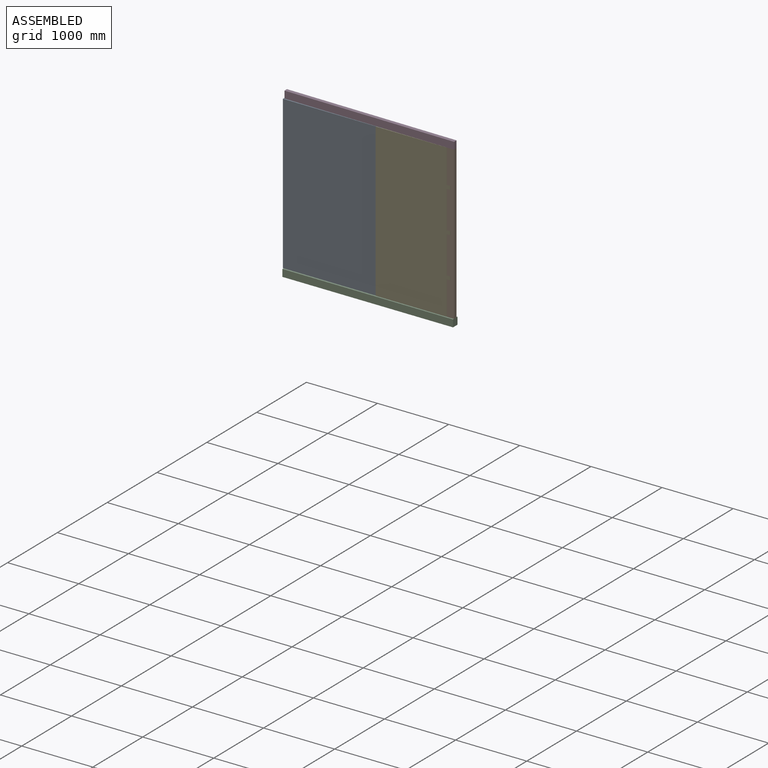
[diagram: assembled view]
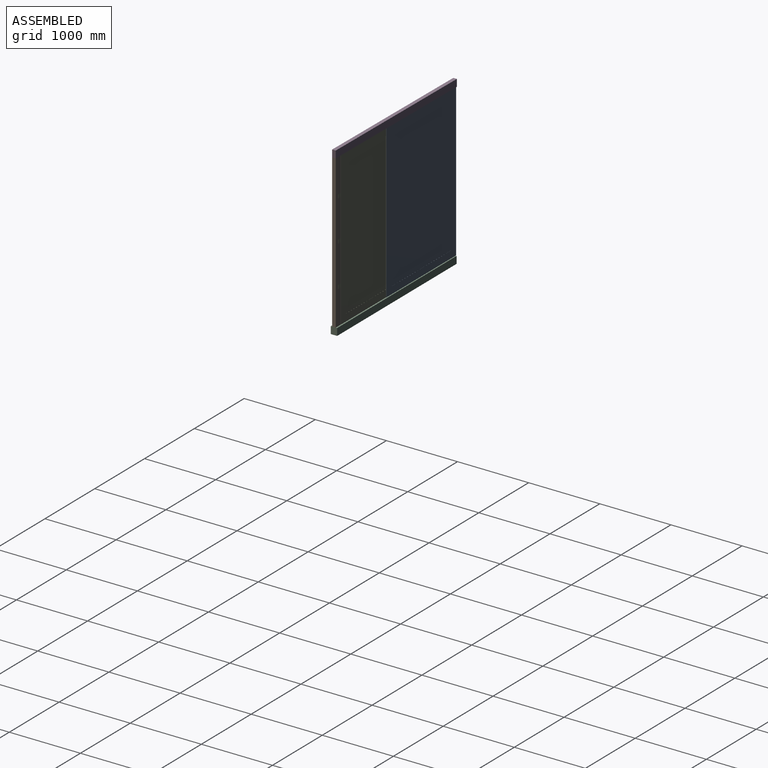
[diagram: assembled view, second angle]
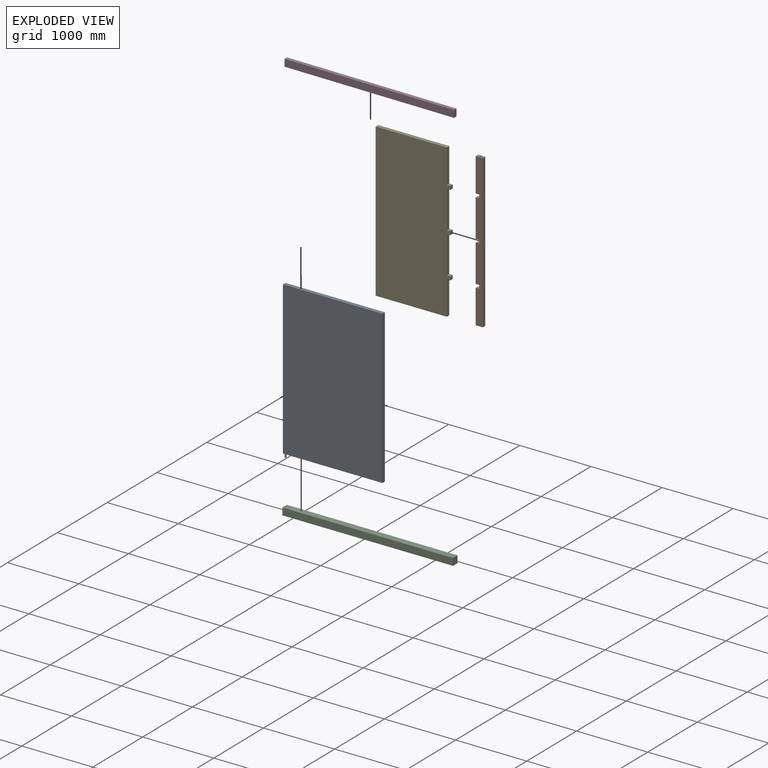
[diagram: exploded view]
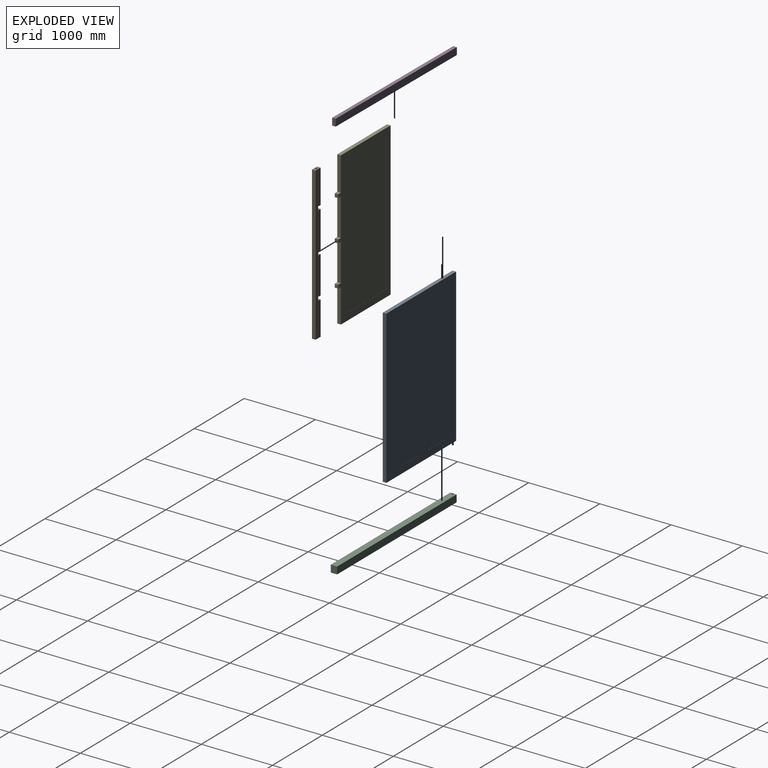
[diagram: exploded view, second angle]
ASSEMBLY  parts=5 mates=4
PART A: 13 faces, bbox 1400x51x2200 mm
  f0: plane 1400x51mm, normal (0,0,-1), area 70947.6mm2, adj f1,f3,f4,f5,f11
  f1: plane 2150x51mm, normal (1,0,0), area 109650mm2, adj f0,f2,f4,f11
  f2: plane 1400x51mm, normal (0,0,1), area 71400mm2, adj f1,f3,f4,f11
  f3: plane 2150x51mm, normal (-1,0,0), area 109650mm2, adj f0,f2,f4,f11
  f4: plane 2150x1400mm, normal (0,-1,0), area 3010000mm2, adj f0,f1,f2,f3
  f5: cylinder r=12mm len=50mm, axis (0,0,1), area 3769.9mm2, adj f0,f6
  f6: plane 24x24mm, normal (0,0,-1), area 452.4mm2, adj f5
  f7: plane 1950x1mm, normal (-1,0,0), area 1950mm2, adj f8,f10,f11,f12
  f8: plane 1200x1mm, normal (0,0,-1), area 1200mm2, adj f7,f9,f11,f12
  f9: plane 1950x1mm, normal (1,0,0), area 1950mm2, adj f8,f10,f11,f12
  f10: plane 1200x1mm, normal (0,0,1), area 1200mm2, adj f7,f9,f11,f12
  f11: plane 2150x1400mm, normal (0,1,0), area 670000mm2, adj f0,f1,f2,f3,f7,f8,f9,f10
  f12: plane 1950x1200mm, normal (0,1,0), area 2340000mm2, adj f7,f8,f9,f10
PART B: 22 faces, bbox 100x50x2150 mm
  f0: plane 50x12.5mm, normal (-1,0,0), area 625mm2, adj f5,f7,f20,f21
  f1: plane 50x12.5mm, normal (-1,0,0), area 625mm2, adj f9,f11,f20,f21
  f2: plane 50x12.5mm, normal (-1,0,0), area 625mm2, adj f13,f15,f20,f21
  f3: plane 100x50mm, normal (0,0,1), area 4509.1mm2, adj f4,f18,f19,f20,f21
  f4: plane 475x50mm, normal (-1,0,0), area 23750mm2, adj f3,f5,f19,f20
  f5: plane 50x50mm, normal (0,0,-1), area 2254.6mm2, adj f0,f4,f6,f19,f20,f21
  f6: plane 50x12.5mm, normal (-1,0,0), area 625mm2, adj f5,f7,f19,f21
  f7: plane 50x50mm, normal (0,0,1), area 2254.6mm2, adj f0,f6,f8,f19,f20,f21
  f8: plane 525x50mm, normal (-1,0,0), area 26250mm2, adj f7,f9,f19,f20
  f9: plane 50x50mm, normal (0,0,-1), area 2254.6mm2, adj f1,f8,f10,f19,f20,f21
  f10: plane 50x12.5mm, normal (-1,0,0), area 625mm2, adj f9,f11,f19,f21
  f11: plane 50x50mm, normal (0,0,1), area 2254.6mm2, adj f1,f10,f12,f19,f20,f21
  f12: plane 525x50mm, normal (-1,0,0), area 26250mm2, adj f11,f13,f19,f20
  f13: plane 50x50mm, normal (0,0,-1), area 2254.6mm2, adj f2,f12,f14,f19,f20,f21
  f14: plane 50x12.5mm, normal (-1,0,0), area 625mm2, adj f13,f15,f19,f21
  f15: plane 50x50mm, normal (0,0,1), area 2254.6mm2, adj f2,f14,f16,f19,f20,f21
  f16: plane 475x50mm, normal (-1,0,0), area 23750mm2, adj f15,f17,f19,f20
  f17: plane 100x50mm, normal (0,0,-1), area 4509.1mm2, adj f16,f18,f19,f20,f21
  f18: plane 2150x50mm, normal (1,0,0), area 107500mm2, adj f3,f17,f19,f20
  f19: plane 2150x100mm, normal (0,1,0), area 207500mm2, adj f3,f4,f5,f6,f7,f8,f9,f10
  f20: plane 2150x100mm, normal (0,-1,0), area 207500mm2, adj f0,f1,f2,f3,f4,f5,f7,f8
  f21: cylinder r=12.5mm len=2150mm, axis (0,0,1), area 162970.1mm2, adj f0,f1,f2,f3,f5,f6,f7,f9
PART C: 8 faces, bbox 2400x90x100 mm
  f0: plane 2400x100mm, normal (0,1,0), area 240000mm2, adj f1,f3,f4,f5
  f1: plane 100x90mm, normal (-1,0,0), area 9000mm2, adj f0,f2,f4,f5
  f2: plane 2400x100mm, normal (0,-1,0), area 240000mm2, adj f1,f3,f4,f5
  f3: plane 100x90mm, normal (1,0,0), area 9000mm2, adj f0,f2,f4,f5
  f4: plane 2400x90mm, normal (0,0,1), area 215509.1mm2, adj f0,f1,f2,f3,f6
  f5: plane 2400x90mm, normal (0,0,-1), area 216000mm2, adj f0,f1,f2,f3
  f6: cylinder r=12.5mm len=50mm, axis (0,0,1), area 3927mm2, adj f4,f7
  f7: plane 25x25mm, normal (0,0,1), area 490.9mm2, adj f6
PART D: 6 faces, bbox 2400.4x73x100 mm
  f0: plane 2400.37x100mm, normal (0.01,1,0), area 240047.9mm2, adj f1,f3,f4,f5
  f1: plane 100x50mm, normal (-1,0,0), area 5000mm2, adj f0,f2,f4,f5
  f2: plane 2399.89x100mm, normal (-0.01,-1,0), area 240000mm2, adj f1,f3,f4,f5
  f3: plane 100x50mm, normal (1,-0.01,0), area 5000mm2, adj f0,f2,f4,f5
  f4: plane 2400.37x72.99mm, normal (0,0,1), area 120009.2mm2, adj f0,f1,f2,f3
  f5: plane 2400.37x72.99mm, normal (0,0,-1), area 120009.2mm2, adj f0,f1,f2,f3
PART E: 23 faces, bbox 1050x51x2150 mm
  f0: plane 50x50mm, normal (0,1,0), area 2500mm2, adj f3,f8,f9,f10
  f1: plane 50x50mm, normal (0,1,0), area 2500mm2, adj f3,f11,f12,f13
  f2: plane 50x50mm, normal (0,1,0), area 2500mm2, adj f3,f14,f15,f16
  f3: plane 2150x51mm, normal (1,0,0), area 102150mm2, adj f0,f1,f2,f4,f6,f7,f8,f9
  f4: plane 1000x51mm, normal (0,0,1), area 51000mm2, adj f3,f5,f7,f21
  f5: plane 2150x51mm, normal (-1,0,0), area 109650mm2, adj f4,f6,f7,f21
  f6: plane 1000x51mm, normal (0,0,-1), area 51000mm2, adj f3,f5,f7,f21
  f7: plane 2150x1050mm, normal (0,-1,0), area 2157500mm2, adj f3,f4,f5,f6,f8,f9,f10,f11
  f8: plane 50x50mm, normal (0,0,-1), area 2500mm2, adj f0,f3,f7,f10
  f9: plane 50x50mm, normal (0,0,1), area 2500mm2, adj f0,f3,f7,f10
  f10: plane 50x50mm, normal (1,0,0), area 2500mm2, adj f0,f7,f8,f9
  f11: plane 50x50mm, normal (0,0,-1), area 2500mm2, adj f1,f3,f7,f13
  f12: plane 50x50mm, normal (0,0,1), area 2500mm2, adj f1,f3,f7,f13
  f13: plane 50x50mm, normal (1,0,0), area 2500mm2, adj f1,f7,f11,f12
  f14: plane 50x50mm, normal (0,0,1), area 2500mm2, adj f2,f3,f7,f16
  f15: plane 50x50mm, normal (0,0,-1), area 2500mm2, adj f2,f3,f7,f16
  f16: plane 50x50mm, normal (1,0,0), area 2500mm2, adj f2,f7,f14,f15
  f17: plane 1950x1mm, normal (-1,0,0), area 1950mm2, adj f18,f20,f21,f22
  f18: plane 800x1mm, normal (0,0,-1), area 800mm2, adj f17,f19,f21,f22
  f19: plane 1950x1mm, normal (1,0,0), area 1950mm2, adj f18,f20,f21,f22
  f20: plane 800x1mm, normal (0,0,1), area 800mm2, adj f17,f19,f21,f22
  f21: plane 2150x1000mm, normal (0,1,0), area 590000mm2, adj f3,f4,f5,f6,f17,f18,f19,f20
  f22: plane 1950x800mm, normal (0,1,0), area 1560000mm2, adj f17,f18,f19,f20
PLACE A rot(axis=(0.02,-0.02,1),0deg) t=(-260.63,-191.65,66.07)mm
PLACE B t=(849.37,-196.05,66.07)mm
PLACE C t=(-379.82,-250.97,-1108.93)mm fixed
PLACE D t=(-708.98,-227.42,1141.07)mm
PLACE E rot(axis=(0,0,-1),0deg) t=(847.22,-196.05,66.07)mm
MATE revolute E.f14 <-> B.f13  axis (0,0,1) through (1372.22,-221.05,-483.93)mm
MATE revolute A.f5 <-> C.f6  axis (0,0,1) through (-935.63,-221.05,-1008.93)mm
MATE fastened B.f17 <-> C.f4  axis (0,0,-1) through (1449.37,-221.05,-1008.93)mm
MATE fastened D.f5 <-> B.f3  axis (0,0,-1) through (1449.37,-221.05,1141.07)mm
